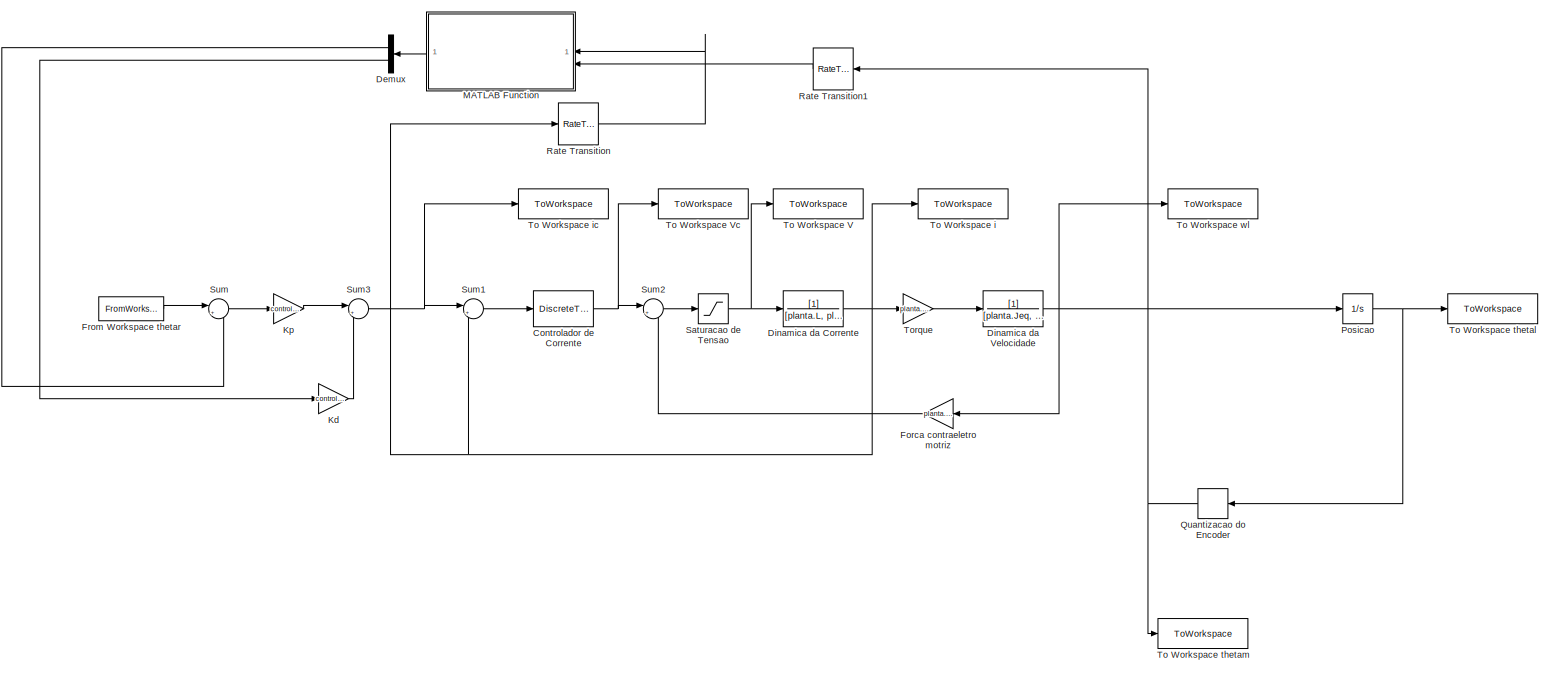
[diagram: root canvas - part 1/1, most of the canvas]
MODEL slx_b973aadf29e4
KIND model
CONFIG AbsTol = auto
CONFIG EnableMultiTasking = off
CONFIG FixedStep = 1e-6
CONFIG MaxStep = auto
CONFIG MinStep = auto
CONFIG RelTol = 1e-3
CONFIG SampleTimeConstraint = Unconstrained
CONFIG SolverName = FixedStepAuto
CONFIG StartTime = 0.0
CONFIG StopTime = tf
BLOCK [DiscreteTransferFcn] Controlador de Corrente
  Denominator = controlador.corrente.ftd.Denominator{1}
  InputPortMap = u0
  Numerator = controlador.corrente.ftd.Numerator{1}
  SampleTime = controlador.corrente.T
BLOCK [Demux] Demux
  NameLocation = top
  Outputs = 2
BLOCK [TransferFcn] Dinamica da Corrente
  Denominator = [planta.L, planta.R]
BLOCK [TransferFcn] Dinamica da Velocidade
  Denominator = [planta.Jeq, planta.Beq]
BLOCK [Gain] Forca contraeletromotriz
  Gain = planta.N * planta.Kt
BLOCK [FromWorkspace] From Workspace thetar
  VariableName = thetar
BLOCK [Gain] Kd
  Gain = controlador.posicao.Kd
BLOCK [Gain] Kp
  Gain = controlador.posicao.Kp
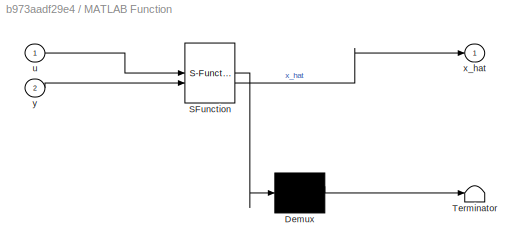
BLOCK [SubSystem] MATLAB Function
  ErrorFcn = Stateflow.Translate.translate
  NameLocation = top
  PermitHierarchicalResolution = ExplicitOnly
  SFBlockType = MATLAB Function
  TreatAsAtomicUnit = on
BLOCK [Demux] MATLAB Function/ Demux 
  Outputs = 1
BLOCK [S-Function] MATLAB Function/ SFunction 
  EnableBusSupport = on
  FunctionName = sf_sfun
  Parameters = planta
  PortCounts = [2 2]
  SFcnIsStateOwnerBlock = off
  SFunctionDeploymentMode = off
  Tag = Stateflow S-Function 2
BLOCK [Terminator] MATLAB Function/ Terminator 
BLOCK [Inport] MATLAB Function/u
BLOCK [Outport] MATLAB Function/x_hat
BLOCK [Inport] MATLAB Function/y
  Port = 2
BLOCK [Integrator] Posicao
BLOCK [Quantizer] Quantizacao do Encoder
  QuantizationInterval = planta.quantizacaoEncoder
BLOCK [RateTransition] Rate Transition
  OutPortSampleTime = controlador.posicao.T
BLOCK [RateTransition] Rate Transition1
  NameLocation = top
  OutPortSampleTime = controlador.posicao.T
BLOCK [Saturate] Saturacao de Tensao
  LowerLimit = -planta.Vmax
  UpperLimit = planta.Vmax
BLOCK [Sum] Sum
  Inputs = |+-
BLOCK [Sum] Sum1
  Inputs = |+-
BLOCK [Sum] Sum2
  Inputs = |+-
BLOCK [Sum] Sum3
  Inputs = |+-
BLOCK [ToWorkspace] To Workspace V
  FixptAsFi = on
  MaxDataPoints = inf
  SampleTime = 1e-6
  SaveFormat = Structure With Time
  VariableName = V
BLOCK [ToWorkspace] To Workspace Vc
  FixptAsFi = on
  MaxDataPoints = inf
  SampleTime = 1e-6
  SaveFormat = Structure With Time
  VariableName = Vc
BLOCK [ToWorkspace] To Workspace i
  FixptAsFi = on
  MaxDataPoints = inf
  SampleTime = 1e-6
  SaveFormat = Structure With Time
  VariableName = i
BLOCK [ToWorkspace] To Workspace ic
  FixptAsFi = on
  MaxDataPoints = inf
  SampleTime = 1e-6
  SaveFormat = Structure With Time
  VariableName = ic
BLOCK [ToWorkspace] To Workspace thetal
  FixptAsFi = on
  MaxDataPoints = inf
  SampleTime = -1
  SaveFormat = Structure With Time
  VariableName = thetal
BLOCK [ToWorkspace] To Workspace thetam
  FixptAsFi = on
  MaxDataPoints = inf
  SampleTime = -1
  SaveFormat = Structure With Time
  VariableName = thetam
BLOCK [ToWorkspace] To Workspace wl
  FixptAsFi = on
  MaxDataPoints = inf
  SampleTime = 1e-6
  SaveFormat = Structure With Time
  VariableName = wl
BLOCK [Gain] Torque
  Gain = planta.N * planta.eta * planta.Kt
NET Controlador de Corrente:1 -> Sum2:1, To Workspace Vc:1
LINE Demux:1 -> Sum:2
LINE Demux:2 -> Kd:1
NET Dinamica da Corrente:1 -> Rate Transition:1, Sum1:2, To Workspace i:1, Torque:1
NET Dinamica da Velocidade:1 -> Forca contraeletromotriz:1, Posicao:1, To Workspace wl:1
LINE Forca contraeletromotriz:1 -> Sum2:2
LINE From Workspace thetar:1 -> Sum:1
LINE Kd:1 -> Sum3:2
LINE Kp:1 -> Sum3:1
LINE MATLAB Function:1 -> Demux:1
NET Posicao:1 -> Quantizacao do Encoder:1, To Workspace thetal:1
NET Quantizacao do Encoder:1 -> Rate Transition1:1, To Workspace thetam:1
LINE Rate Transition1:1 -> MATLAB Function:2
LINE Rate Transition:1 -> MATLAB Function:1
NET Saturacao de Tensao:1 -> Dinamica da Corrente:1, To Workspace V:1
LINE Sum1:1 -> Controlador de Corrente:1
LINE Sum2:1 -> Saturacao de Tensao:1
NET Sum3:1 -> Sum1:1, To Workspace ic:1
LINE Sum:1 -> Kp:1
LINE Torque:1 -> Dinamica da Velocidade:1
note: NET lines group one-source signal fan-out (src -> all destinations, sorted); 1:1 wires keep LINE
CHART MATLAB Function states=1 transitions=1
  STATE_LABEL 'eML_blk_kernel()'
  STATE_LABEL 'SCRIPT:\nfunction x_hat = KalmanFilterFcn(u, y, planta)\n% KalmanFilterFcn: Implements a discrete Kalman Filter from a continuous plant model.\n%   u: Control input vector\n%   y: Measurement output vector\n\npersistent x_hat_prev u_prev P_prev A B C D Q R;\n\nA = planta.Kalman.A;\nB = planta.Kalman.B;\nC = planta.Kalman.C;\nD = planta.Kalman.D;\nQ = planta.Kalman.Q;\nR = planta.Kalman.R;\n\n\n% Initialization\nif...<+1063ch>'
CHART  states=0 transitions=0
